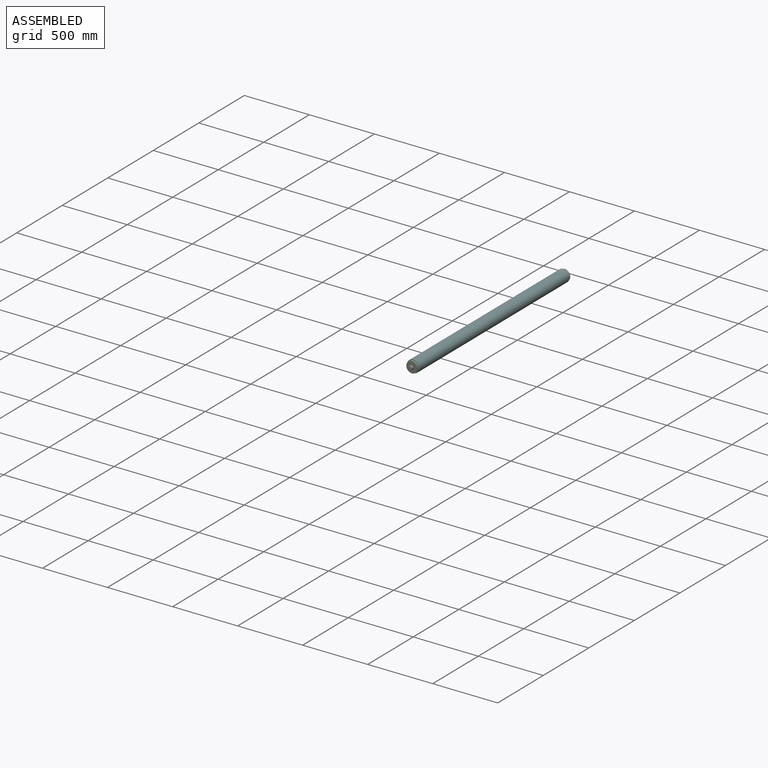
[diagram: assembled view]
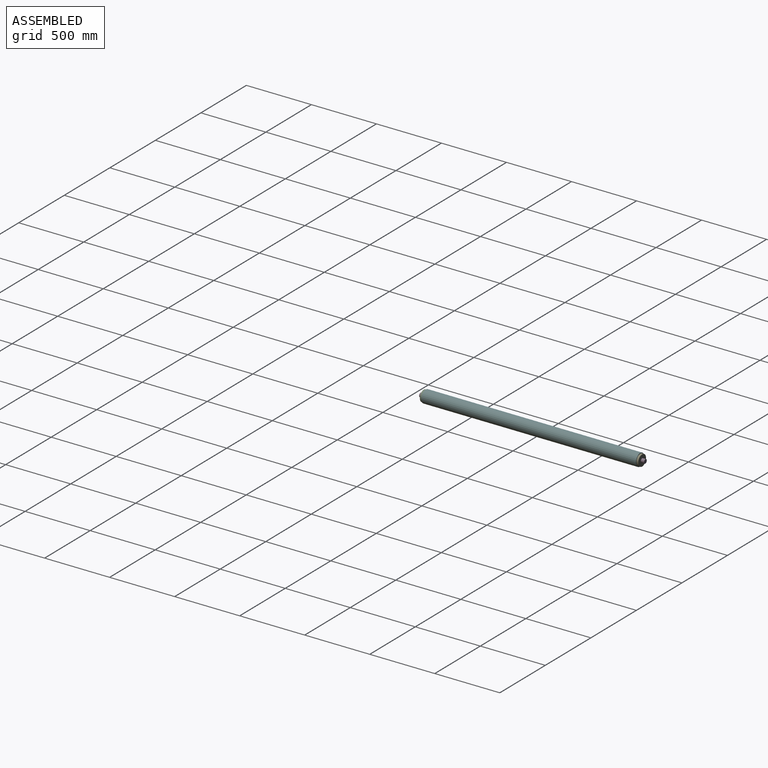
[diagram: assembled view, second angle]
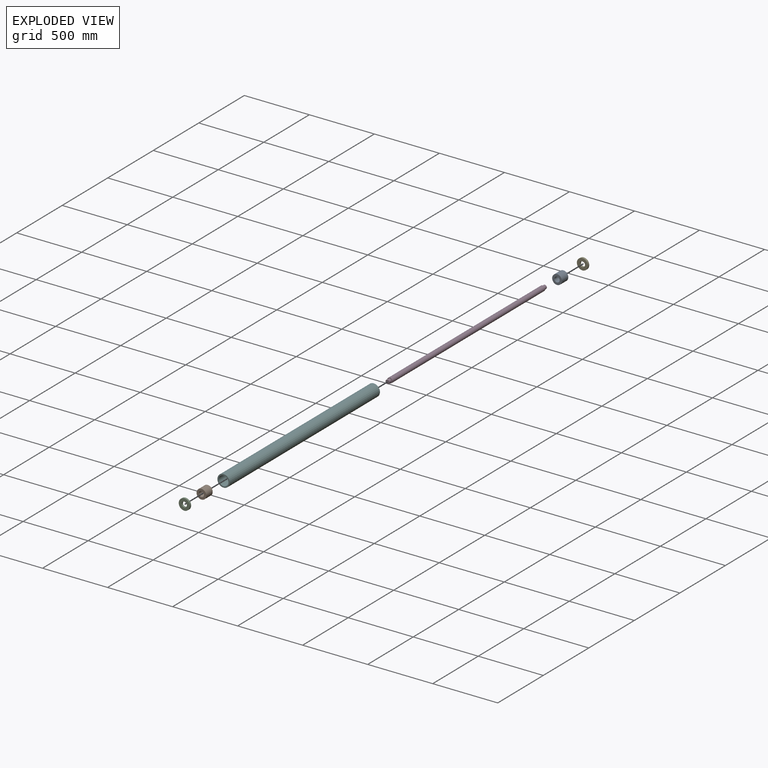
[diagram: exploded view]
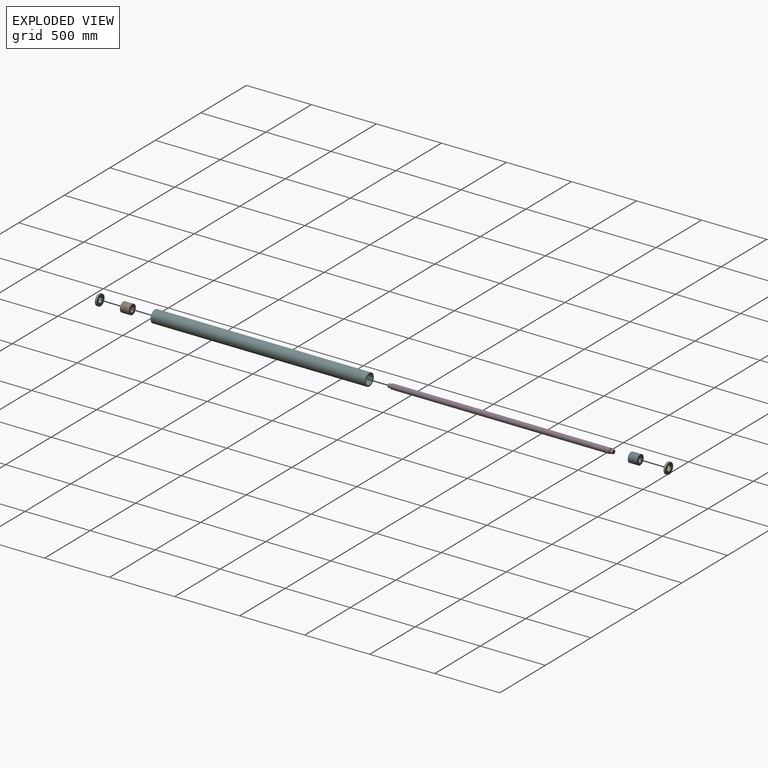
[diagram: exploded view, second angle]
ASSEMBLY  parts=6 mates=5
PART A: 4 faces, bbox 75x70x75 mm
  f0: cylinder r=20mm len=70mm, axis (0,1,0), area 8796.5mm2, adj f2,f3
  f1: cylinder r=37.5mm len=75mm, axis (0,1,0), area 16493.4mm2, adj f2,f3
  f2: plane 75x75mm, normal (0,-1,0), area 3161.2mm2, adj f0,f1
  f3: plane 75x75mm, normal (0,1,0), area 3161.2mm2, adj f0,f1
PART B: 4 faces, bbox 75x70x75 mm
  f0: cylinder r=20mm len=70mm, axis (0,1,0), area 8796.5mm2, adj f2,f3
  f1: cylinder r=37.5mm len=75mm, axis (0,1,0), area 16493.4mm2, adj f2,f3
  f2: plane 75x75mm, normal (0,-1,0), area 3161.2mm2, adj f0,f1
  f3: plane 75x75mm, normal (0,1,0), area 3161.2mm2, adj f0,f1
PART C: 4 faces, bbox 85x15x85 mm
  f0: cylinder r=20mm len=40mm, axis (0,1,0), area 1885mm2, adj f2,f3
  f1: cylinder r=42.5mm len=85mm, axis (0,1,0), area 4005.5mm2, adj f2,f3
  f2: plane 85x85mm, normal (0,-1,0), area 4417.9mm2, adj f0,f1
  f3: plane 85x85mm, normal (0,1,0), area 4417.9mm2, adj f0,f1
PART D: 7 faces, bbox 40x1730x40 mm
  f0: cylinder r=20mm len=1680mm, axis (0,1,0), area 211115mm2, adj f1,f2
  f1: plane 40x40mm, normal (0,-1,0), area 549.8mm2, adj f0,f3
  f2: plane 40x40mm, normal (0,1,0), area 549.8mm2, adj f0,f5
  f3: cylinder r=15mm len=30mm, axis (0,1,0), area 2356.2mm2, adj f1,f4
  f4: plane 30x30mm, normal (0,-1,0), area 706.9mm2, adj f3
  f5: cylinder r=15mm len=30mm, axis (0,-1,0), area 2356.2mm2, adj f2,f6
  f6: plane 30x30mm, normal (0,1,0), area 706.9mm2, adj f5
PART E: 4 faces, bbox 85x15x85 mm
  f0: cylinder r=20mm len=40mm, axis (0,1,0), area 1885mm2, adj f2,f3
  f1: cylinder r=42.5mm len=85mm, axis (0,1,0), area 4005.5mm2, adj f2,f3
  f2: plane 85x85mm, normal (0,-1,0), area 4417.9mm2, adj f0,f1
  f3: plane 85x85mm, normal (0,1,0), area 4417.9mm2, adj f0,f1
PART F: 4 faces, bbox 95x1650x95 mm
  f0: cylinder r=37.5mm len=1650mm, axis (0,1,0), area 388772.1mm2, adj f2,f3
  f1: cylinder r=47.5mm len=1650mm, axis (0,1,0), area 492444.6mm2, adj f2,f3
  f2: plane 95x95mm, normal (0,-1,0), area 2670.4mm2, adj f0,f1
  f3: plane 95x95mm, normal (0,1,0), area 2670.4mm2, adj f0,f1
PLACE A rot(axis=(1,0,0),180deg) t=(-297.5,788.69,265.73)mm
PLACE B t=(-297.5,-791.31,265.73)mm
PLACE C t=(-397.5,-798.81,265.73)mm
PLACE D t=(-341.51,41.19,190.73)mm
PLACE E rot(axis=(1,0,0),180deg) t=(-397.5,796.19,265.73)mm
PLACE F t=(-165.69,-1.31,190.73)mm
MATE fastened E.f0 <-> A.f0  axis (0,-1,0) through (-222.5,823.69,190.73)mm
MATE fastened A.f0 <-> F.f0  axis (0,1,0) through (-222.5,823.69,190.73)mm
MATE revolute D.f0 <-> C.f0  axis (0,-1,0) through (-222.5,-841.31,190.73)mm
MATE fastened B.f0 <-> F.f0  axis (0,-1,0) through (-222.5,-826.31,190.73)mm
MATE fastened C.f0 <-> B.f0  axis (0,1,0) through (-222.5,-826.31,190.73)mm
